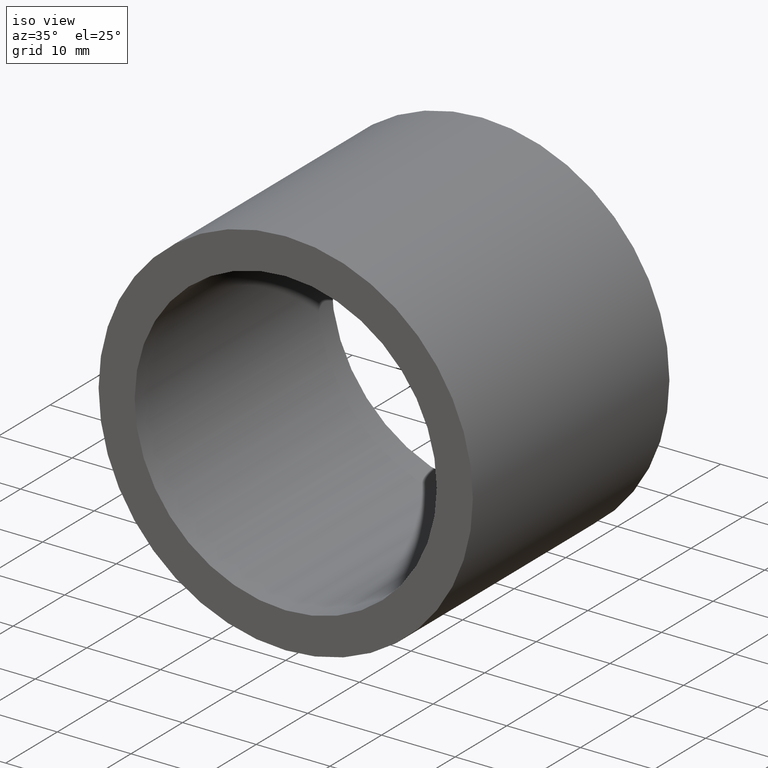
[diagram: clean part render]
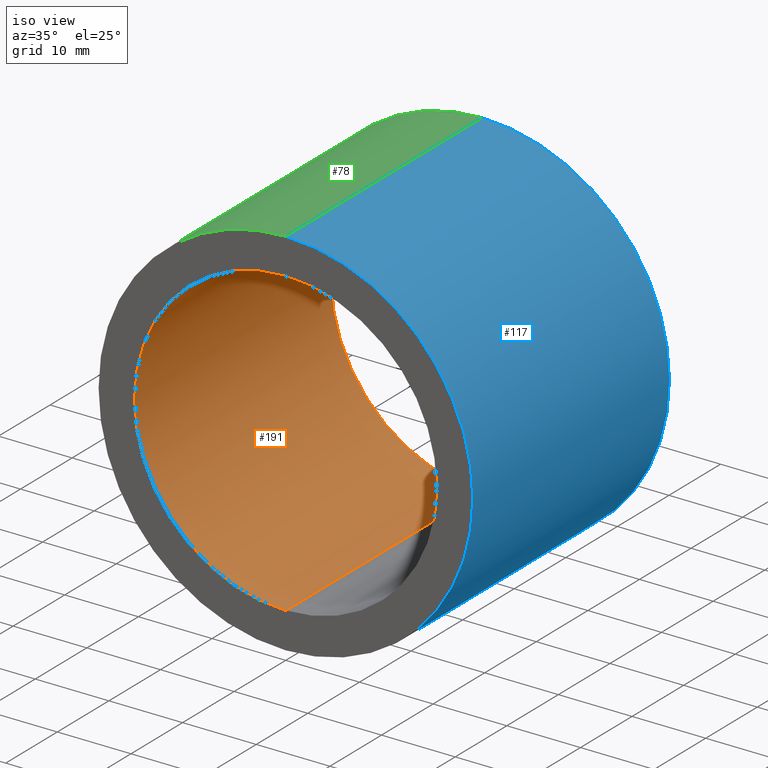
[diagram: same view with three faces highlighted in distinct colors, each labeled with its STEP entity id]
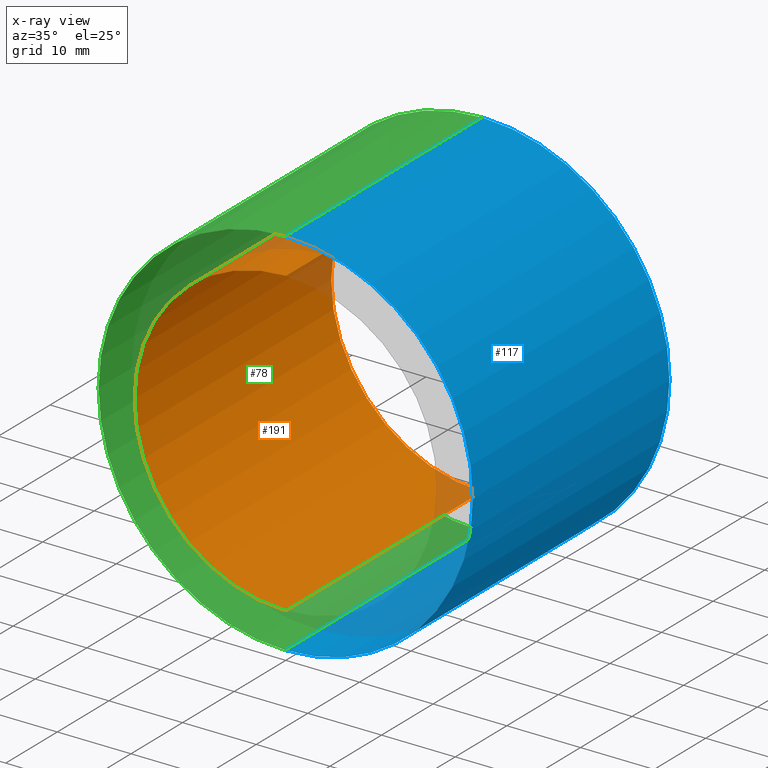
[diagram: x-ray of the same camera — body ghosted, the three highlighted faces saturated]
A machine part, iso view with three faces highlighted in distinct colors.
The next image is the same camera in x-ray (body ghosted, the three faces saturated) — at least one of them is partly hidden behind the body in this view.
Their STEP definitions:

[orange] entity #191 — the highlighted cylindrical surface (partial cylindrical patch) has radius 20.5 mm, axis along (-0, 1, -0).
#13 = DIRECTION ( 'NONE',  ( -0.0000000000000000000, 1.000000000000000000, -0.0000000000000000000 ) ) ;
#19 = DIRECTION ( 'NONE',  ( -0.0000000000000000000, 1.000000000000000000, -0.0000000000000000000 ) ) ;
#20 = DIRECTION ( 'NONE',  ( -0.0000000000000000000, 1.000000000000000000, -0.0000000000000000000 ) ) ;
#22 = FACE_OUTER_BOUND ( 'NONE', #62, .T. ) ;
#30 = VERTEX_POINT ( 'NONE', #151 ) ;
#36 = CARTESIAN_POINT ( 'NONE',  ( 0.0000000000000000000, -2.775557561562891400E-014, 0.0000000000000000000 ) ) ;
#38 = DIRECTION ( 'NONE',  ( 0.0000000000000000000, 0.0000000000000000000, 1.000000000000000000 ) ) ;
#43 = EDGE_CURVE ( 'NONE', #187, #56, #198, .T. ) ;
#56 = VERTEX_POINT ( 'NONE', #167 ) ;
#62 = EDGE_LOOP ( 'NONE', ( #230, #232, #69, #178 ) ) ;
#65 = CYLINDRICAL_SURFACE ( 'NONE', #146, 20.50000000000001800 ) ;
#69 = ORIENTED_EDGE ( 'NONE', *, *, #140, .T. ) ;
#74 = LINE ( 'NONE', #241, #234 ) ;
#81 = CARTESIAN_POINT ( 'NONE',  ( 0.0000000000000000000, 161.3761669434274500, 0.0000000000000000000 ) ) ;
#82 = CIRCLE ( 'NONE', #185, 20.50000000000001400 ) ;
#97 = DIRECTION ( 'NONE',  ( 0.0000000000000000000, 0.0000000000000000000, 1.000000000000000000 ) ) ;
#113 = CARTESIAN_POINT ( 'NONE',  ( 0.0000000000000000000, 38.09999999999999400, 0.0000000000000000000 ) ) ;
#121 = VECTOR ( 'NONE', #129, 1000.000000000000000 ) ;
#122 = EDGE_CURVE ( 'NONE', #30, #187, #183, .T. ) ;
#129 = DIRECTION ( 'NONE',  ( -0.0000000000000000000, 1.000000000000000000, -0.0000000000000000000 ) ) ;
#140 = EDGE_CURVE ( 'NONE', #163, #56, #82, .T. ) ;
#146 = AXIS2_PLACEMENT_3D ( 'NONE', #81, #209, #97 ) ;
#147 = AXIS2_PLACEMENT_3D ( 'NONE', #36, #19, #38 ) ;
#151 = CARTESIAN_POINT ( 'NONE',  ( 2.510525938252076500E-015, -2.775557561562891400E-014, -20.50000000000002100 ) ) ;
#162 = EDGE_CURVE ( 'NONE', #30, #163, #74, .T. ) ;
#163 = VERTEX_POINT ( 'NONE', #190 ) ;
#167 = CARTESIAN_POINT ( 'NONE',  ( 0.0000000000000000000, 38.09999999999999400, 20.50000000000001400 ) ) ;
#171 = CARTESIAN_POINT ( 'NONE',  ( 0.0000000000000000000, -2.775557561562891400E-014, 20.50000000000002100 ) ) ;
#173 = DIRECTION ( 'NONE',  ( 0.0000000000000000000, 0.0000000000000000000, 1.000000000000000000 ) ) ;
#178 = ORIENTED_EDGE ( 'NONE', *, *, #43, .F. ) ;
#183 = CIRCLE ( 'NONE', #147, 20.50000000000002100 ) ;
#185 = AXIS2_PLACEMENT_3D ( 'NONE', #113, #20, #173 ) ;
#186 = CARTESIAN_POINT ( 'NONE',  ( 0.0000000000000000000, 161.3761669434274500, 20.50000000000001800 ) ) ;
#187 = VERTEX_POINT ( 'NONE', #171 ) ;
#190 = CARTESIAN_POINT ( 'NONE',  ( 2.510525938252075700E-015, 38.09999999999999400, -20.50000000000001400 ) ) ;
#191 = ADVANCED_FACE ( 'NONE', ( #22 ), #65, .F. ) ;
#198 = LINE ( 'NONE', #186, #121 ) ;
#209 = DIRECTION ( 'NONE',  ( -0.0000000000000000000, 1.000000000000000000, -0.0000000000000000000 ) ) ;
#230 = ORIENTED_EDGE ( 'NONE', *, *, #122, .F. ) ;
#232 = ORIENTED_EDGE ( 'NONE', *, *, #162, .T. ) ;
#234 = VECTOR ( 'NONE', #13, 1000.000000000000000 ) ;
#241 = CARTESIAN_POINT ( 'NONE',  ( 2.510525938252076100E-015, 161.3761669434274500, -20.50000000000001800 ) ) ;

[blue] entity #117 — the highlighted cylindrical surface (partial cylindrical patch) has radius 25.4 mm, axis along (-0, 1, -0).
#17 = DIRECTION ( 'NONE',  ( 0.0000000000000000000, 0.0000000000000000000, 1.000000000000000000 ) ) ;
#29 = VERTEX_POINT ( 'NONE', #164 ) ;
#42 = ORIENTED_EDGE ( 'NONE', *, *, #67, .F. ) ;
#46 = EDGE_LOOP ( 'NONE', ( #111, #207, #42, #156 ) ) ;
#48 = VERTEX_POINT ( 'NONE', #53 ) ;
#50 = FACE_OUTER_BOUND ( 'NONE', #46, .T. ) ;
#53 = CARTESIAN_POINT ( 'NONE',  ( 3.110602869834279600E-015, 38.09999999999999400, -25.40000000000002000 ) ) ;
#54 = DIRECTION ( 'NONE',  ( -0.0000000000000000000, 1.000000000000000000, -0.0000000000000000000 ) ) ;
#58 = CARTESIAN_POINT ( 'NONE',  ( 3.110602869834279600E-015, 161.3761669434274500, -25.40000000000002000 ) ) ;
#67 = EDGE_CURVE ( 'NONE', #29, #48, #165, .T. ) ;
#71 = EDGE_CURVE ( 'NONE', #212, #29, #168, .T. ) ;
#75 = CYLINDRICAL_SURFACE ( 'NONE', #220, 25.40000000000002000 ) ;
#77 = DIRECTION ( 'NONE',  ( -0.0000000000000000000, 1.000000000000000000, -0.0000000000000000000 ) ) ;
#88 = AXIS2_PLACEMENT_3D ( 'NONE', #216, #206, #106 ) ;
#106 = DIRECTION ( 'NONE',  ( 0.0000000000000000000, 0.0000000000000000000, 1.000000000000000000 ) ) ;
#111 = ORIENTED_EDGE ( 'NONE', *, *, #199, .T. ) ;
#117 = ADVANCED_FACE ( 'NONE', ( #50 ), #75, .T. ) ;
#128 = DIRECTION ( 'NONE',  ( -0.0000000000000000000, 1.000000000000000000, -0.0000000000000000000 ) ) ;
#130 = CARTESIAN_POINT ( 'NONE',  ( 0.0000000000000000000, 161.3761669434274500, 25.40000000000002000 ) ) ;
#133 = CARTESIAN_POINT ( 'NONE',  ( 0.0000000000000000000, 161.3761669434274500, 0.0000000000000000000 ) ) ;
#155 = VERTEX_POINT ( 'NONE', #170 ) ;
#156 = ORIENTED_EDGE ( 'NONE', *, *, #71, .F. ) ;
#157 = LINE ( 'NONE', #58, #203 ) ;
#164 = CARTESIAN_POINT ( 'NONE',  ( 0.0000000000000000000, 38.09999999999999400, 25.40000000000002000 ) ) ;
#165 = CIRCLE ( 'NONE', #88, 25.40000000000002000 ) ;
#168 = LINE ( 'NONE', #130, #229 ) ;
#170 = CARTESIAN_POINT ( 'NONE',  ( 3.110602869834279600E-015, -2.775557561562891400E-014, -25.40000000000002000 ) ) ;
#172 = CARTESIAN_POINT ( 'NONE',  ( 0.0000000000000000000, -2.775557561562891400E-014, 25.40000000000002000 ) ) ;
#192 = DIRECTION ( 'NONE',  ( 0.0000000000000000000, 0.0000000000000000000, 1.000000000000000000 ) ) ;
#194 = CIRCLE ( 'NONE', #210, 25.40000000000002000 ) ;
#199 = EDGE_CURVE ( 'NONE', #212, #155, #194, .T. ) ;
#203 = VECTOR ( 'NONE', #54, 1000.000000000000000 ) ;
#206 = DIRECTION ( 'NONE',  ( -0.0000000000000000000, 1.000000000000000000, -0.0000000000000000000 ) ) ;
#207 = ORIENTED_EDGE ( 'NONE', *, *, #237, .T. ) ;
#210 = AXIS2_PLACEMENT_3D ( 'NONE', #223, #77, #192 ) ;
#212 = VERTEX_POINT ( 'NONE', #172 ) ;
#216 = CARTESIAN_POINT ( 'NONE',  ( 0.0000000000000000000, 38.09999999999999400, 0.0000000000000000000 ) ) ;
#220 = AXIS2_PLACEMENT_3D ( 'NONE', #133, #240, #17 ) ;
#223 = CARTESIAN_POINT ( 'NONE',  ( 0.0000000000000000000, -2.775557561562891400E-014, 0.0000000000000000000 ) ) ;
#229 = VECTOR ( 'NONE', #128, 1000.000000000000000 ) ;
#237 = EDGE_CURVE ( 'NONE', #155, #48, #157, .T. ) ;
#240 = DIRECTION ( 'NONE',  ( -0.0000000000000000000, 1.000000000000000000, -0.0000000000000000000 ) ) ;

[green] entity #78 — the highlighted cylindrical surface (partial cylindrical patch) has radius 25.4 mm, axis along (-0, 1, -0).
#10 = DIRECTION ( 'NONE',  ( -0.0000000000000000000, 1.000000000000000000, -0.0000000000000000000 ) ) ;
#15 = ORIENTED_EDGE ( 'NONE', *, *, #71, .T. ) ;
#29 = VERTEX_POINT ( 'NONE', #164 ) ;
#39 = DIRECTION ( 'NONE',  ( 0.0000000000000000000, 0.0000000000000000000, 1.000000000000000000 ) ) ;
#44 = EDGE_LOOP ( 'NONE', ( #89, #87, #15, #102 ) ) ;
#48 = VERTEX_POINT ( 'NONE', #53 ) ;
#49 = DIRECTION ( 'NONE',  ( -0.0000000000000000000, 1.000000000000000000, -0.0000000000000000000 ) ) ;
#53 = CARTESIAN_POINT ( 'NONE',  ( 3.110602869834279600E-015, 38.09999999999999400, -25.40000000000002000 ) ) ;
#54 = DIRECTION ( 'NONE',  ( -0.0000000000000000000, 1.000000000000000000, -0.0000000000000000000 ) ) ;
#57 = DIRECTION ( 'NONE',  ( -0.0000000000000000000, 1.000000000000000000, -0.0000000000000000000 ) ) ;
#58 = CARTESIAN_POINT ( 'NONE',  ( 3.110602869834279600E-015, 161.3761669434274500, -25.40000000000002000 ) ) ;
#61 = AXIS2_PLACEMENT_3D ( 'NONE', #205, #57, #39 ) ;
#71 = EDGE_CURVE ( 'NONE', #212, #29, #168, .T. ) ;
#76 = EDGE_CURVE ( 'NONE', #155, #212, #127, .T. ) ;
#78 = ADVANCED_FACE ( 'NONE', ( #84 ), #148, .T. ) ;
#84 = FACE_OUTER_BOUND ( 'NONE', #44, .T. ) ;
#87 = ORIENTED_EDGE ( 'NONE', *, *, #76, .T. ) ;
#89 = ORIENTED_EDGE ( 'NONE', *, *, #237, .F. ) ;
#91 = CARTESIAN_POINT ( 'NONE',  ( 0.0000000000000000000, -2.775557561562891400E-014, 0.0000000000000000000 ) ) ;
#102 = ORIENTED_EDGE ( 'NONE', *, *, #197, .F. ) ;
#108 = DIRECTION ( 'NONE',  ( 0.0000000000000000000, 0.0000000000000000000, 1.000000000000000000 ) ) ;
#109 = CARTESIAN_POINT ( 'NONE',  ( 0.0000000000000000000, 161.3761669434274500, 0.0000000000000000000 ) ) ;
#125 = AXIS2_PLACEMENT_3D ( 'NONE', #109, #49, #235 ) ;
#127 = CIRCLE ( 'NONE', #180, 25.40000000000002000 ) ;
#128 = DIRECTION ( 'NONE',  ( -0.0000000000000000000, 1.000000000000000000, -0.0000000000000000000 ) ) ;
#130 = CARTESIAN_POINT ( 'NONE',  ( 0.0000000000000000000, 161.3761669434274500, 25.40000000000002000 ) ) ;
#148 = CYLINDRICAL_SURFACE ( 'NONE', #125, 25.40000000000002000 ) ;
#155 = VERTEX_POINT ( 'NONE', #170 ) ;
#157 = LINE ( 'NONE', #58, #203 ) ;
#160 = CIRCLE ( 'NONE', #61, 25.40000000000002000 ) ;
#164 = CARTESIAN_POINT ( 'NONE',  ( 0.0000000000000000000, 38.09999999999999400, 25.40000000000002000 ) ) ;
#168 = LINE ( 'NONE', #130, #229 ) ;
#170 = CARTESIAN_POINT ( 'NONE',  ( 3.110602869834279600E-015, -2.775557561562891400E-014, -25.40000000000002000 ) ) ;
#172 = CARTESIAN_POINT ( 'NONE',  ( 0.0000000000000000000, -2.775557561562891400E-014, 25.40000000000002000 ) ) ;
#180 = AXIS2_PLACEMENT_3D ( 'NONE', #91, #10, #108 ) ;
#197 = EDGE_CURVE ( 'NONE', #48, #29, #160, .T. ) ;
#203 = VECTOR ( 'NONE', #54, 1000.000000000000000 ) ;
#205 = CARTESIAN_POINT ( 'NONE',  ( 0.0000000000000000000, 38.09999999999999400, 0.0000000000000000000 ) ) ;
#212 = VERTEX_POINT ( 'NONE', #172 ) ;
#229 = VECTOR ( 'NONE', #128, 1000.000000000000000 ) ;
#235 = DIRECTION ( 'NONE',  ( 0.0000000000000000000, 0.0000000000000000000, 1.000000000000000000 ) ) ;
#237 = EDGE_CURVE ( 'NONE', #155, #48, #157, .T. ) ;